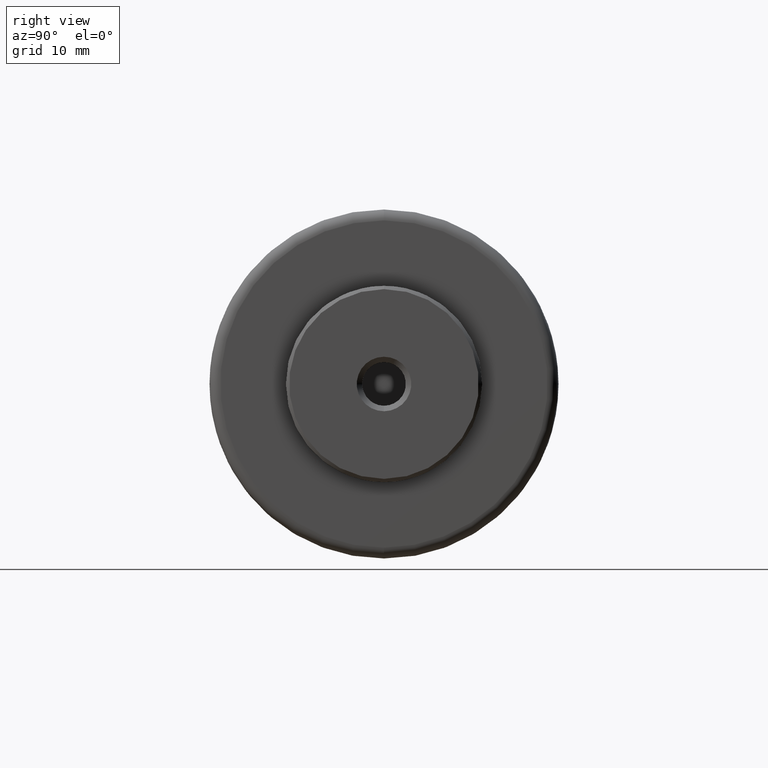
[diagram: clean part render]
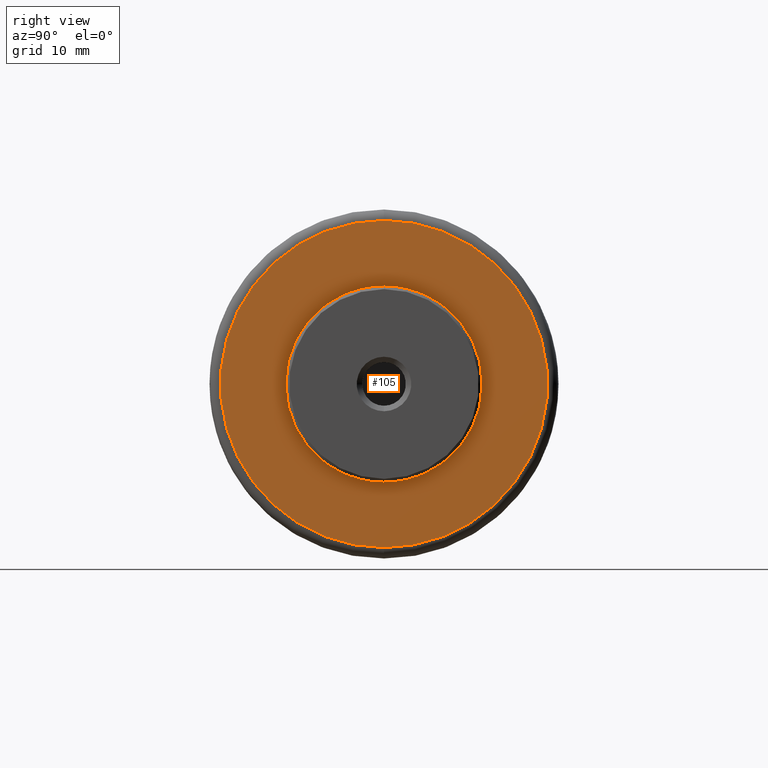
[diagram: same view with one face highlighted and labeled with its STEP entity id]
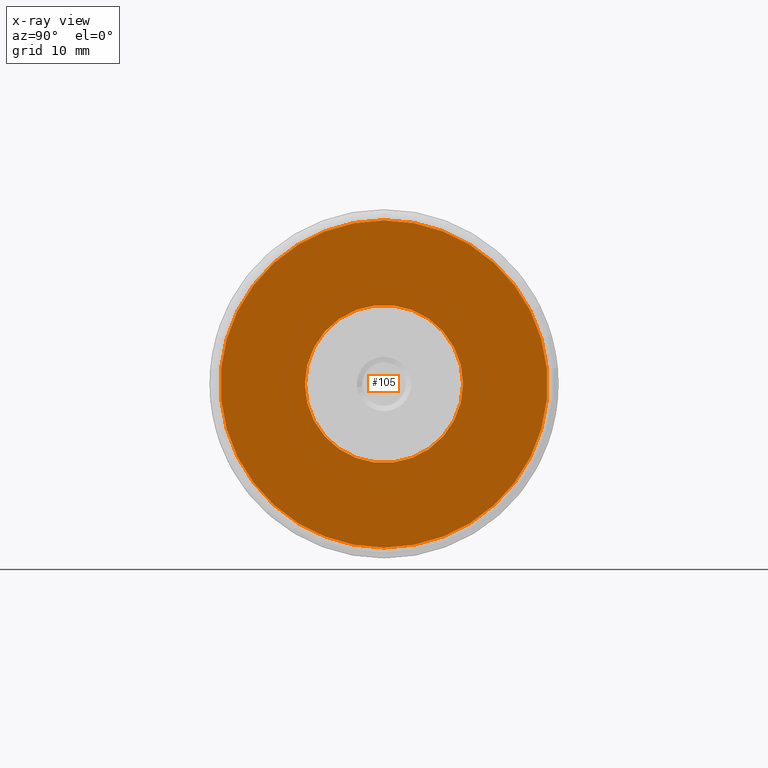
[diagram: x-ray of the same camera — body ghosted, the highlighted face saturated]
A machine part, right view. The second image highlights one B-rep face of the part: STEP entity #105.
The next image is the same camera in x-ray: the body ghosted, the highlighted face saturated — about 0% of this face is hidden behind the body in this view.
In plain terms, the highlighted planar face has unit normal (1, -0, 0).
Its self-contained STEP definition (entity closure, byte-faithful):
#32 = ORIENTED_EDGE ( 'NONE', *, *, #1181, .T. ) ;
#38 = CARTESIAN_POINT ( 'NONE',  ( 46.00000000000000000, 0.0000000000000000000, 0.0000000000000000000 ) ) ;
#52 = DIRECTION ( 'NONE',  ( 1.000000000000000000, -0.0000000000000000000, 0.0000000000000000000 ) ) ;
#58 = DIRECTION ( 'NONE',  ( 0.0000000000000000000, 0.0000000000000000000, -1.000000000000000000 ) ) ;
#69 = DIRECTION ( 'NONE',  ( 1.000000000000000000, -0.0000000000000000000, 0.0000000000000000000 ) ) ;
#77 = CARTESIAN_POINT ( 'NONE',  ( 46.00000000000000000, 0.0000000000000000000, 0.0000000000000000000 ) ) ;
#80 = DIRECTION ( 'NONE',  ( 0.0000000000000000000, 0.0000000000000000000, -1.000000000000000000 ) ) ;
#85 = ORIENTED_EDGE ( 'NONE', *, *, #300, .T. ) ;
#88 = DIRECTION ( 'NONE',  ( 0.0000000000000000000, 0.0000000000000000000, -1.000000000000000000 ) ) ;
#105 = ADVANCED_FACE ( 'NONE', ( #1026, #780 ), #808, .T. ) ;
#164 = VERTEX_POINT ( 'NONE', #1225 ) ;
#202 = EDGE_LOOP ( 'NONE', ( #414, #971 ) ) ;
#256 = CARTESIAN_POINT ( 'NONE',  ( 46.00000000000004300, 0.0000000000000000000, 0.0000000000000000000 ) ) ;
#274 = DIRECTION ( 'NONE',  ( 0.0000000000000000000, 0.0000000000000000000, 1.000000000000000000 ) ) ;
#287 = DIRECTION ( 'NONE',  ( -1.000000000000000000, -0.0000000000000000000, -0.0000000000000000000 ) ) ;
#295 = CIRCLE ( 'NONE', #527, 7.249999999999981300 ) ;
#300 = EDGE_CURVE ( 'NONE', #667, #331, #434, .T. ) ;
#303 = AXIS2_PLACEMENT_3D ( 'NONE', #38, #52, #58 ) ;
#331 = VERTEX_POINT ( 'NONE', #989 ) ;
#367 = AXIS2_PLACEMENT_3D ( 'NONE', #77, #69, #80 ) ;
#374 = CIRCLE ( 'NONE', #303, 15.00000000000000000 ) ;
#414 = ORIENTED_EDGE ( 'NONE', *, *, #641, .T. ) ;
#434 = CIRCLE ( 'NONE', #902, 7.249999999999981300 ) ;
#471 = CIRCLE ( 'NONE', #367, 15.00000000000000000 ) ;
#527 = AXIS2_PLACEMENT_3D ( 'NONE', #256, #287, #558 ) ;
#533 = CARTESIAN_POINT ( 'NONE',  ( 46.00000000000000000, 1.898202538678397200E-015, 15.00000000000000000 ) ) ;
#538 = CARTESIAN_POINT ( 'NONE',  ( 46.00000000000004300, 0.0000000000000000000, 0.0000000000000000000 ) ) ;
#558 = DIRECTION ( 'NONE',  ( 0.0000000000000000000, 0.0000000000000000000, 1.000000000000000000 ) ) ;
#641 = EDGE_CURVE ( 'NONE', #164, #771, #374, .T. ) ;
#656 = EDGE_CURVE ( 'NONE', #771, #164, #471, .T. ) ;
#667 = VERTEX_POINT ( 'NONE', #897 ) ;
#679 = EDGE_LOOP ( 'NONE', ( #85, #32 ) ) ;
#771 = VERTEX_POINT ( 'NONE', #533 ) ;
#773 = DIRECTION ( 'NONE',  ( -1.000000000000000000, -0.0000000000000000000, -0.0000000000000000000 ) ) ;
#780 = FACE_BOUND ( 'NONE', #679, .T. ) ;
#808 = PLANE ( 'NONE',  #1096 ) ;
#897 = CARTESIAN_POINT ( 'NONE',  ( 46.00000000000004300, -7.249999999999981300, 0.0000000000000000000 ) ) ;
#902 = AXIS2_PLACEMENT_3D ( 'NONE', #538, #773, #274 ) ;
#941 = CARTESIAN_POINT ( 'NONE',  ( 46.00000000000000000, -15.18000000000000100, 15.18000000000000100 ) ) ;
#971 = ORIENTED_EDGE ( 'NONE', *, *, #656, .T. ) ;
#989 = CARTESIAN_POINT ( 'NONE',  ( 46.00000000000004300, 7.249999999999981300, 8.878689293818299200E-016 ) ) ;
#1026 = FACE_OUTER_BOUND ( 'NONE', #202, .T. ) ;
#1096 = AXIS2_PLACEMENT_3D ( 'NONE', #941, #1133, #88 ) ;
#1133 = DIRECTION ( 'NONE',  ( 1.000000000000000000, -0.0000000000000000000, 0.0000000000000000000 ) ) ;
#1181 = EDGE_CURVE ( 'NONE', #331, #667, #295, .T. ) ;
#1225 = CARTESIAN_POINT ( 'NONE',  ( 46.00000000000000000, 0.0000000000000000000, -15.00000000000000000 ) ) ;